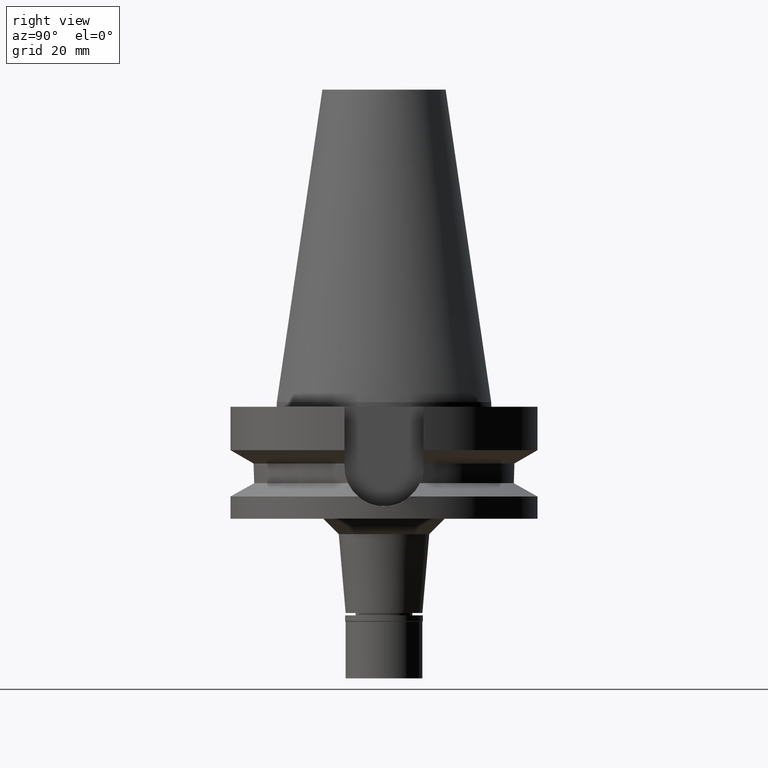
[diagram: clean part render]
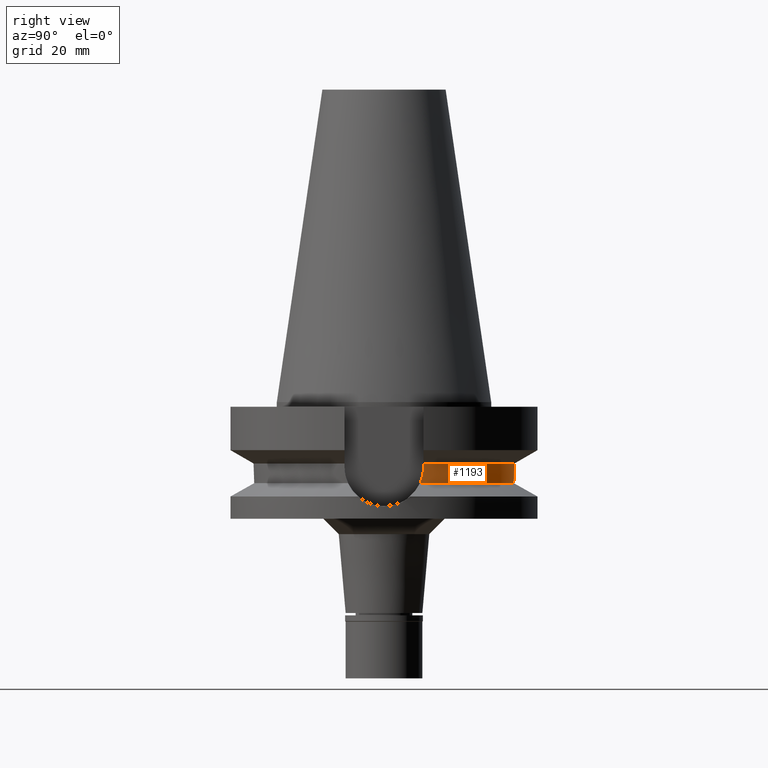
[diagram: same view with one face highlighted and labeled with its STEP entity id]
A machine part, right view. The second image highlights one B-rep face of the part: STEP entity #1193.
In plain terms, the highlighted cylindrical surface (partial cylindrical patch) has radius 42.5 mm, axis along (0, 0, -1).
Its self-contained STEP definition (entity closure, byte-faithful):
#2 = CARTESIAN_POINT ( 'NONE',  ( 40.63719938804641174, 12.44499676302016233, -24.35261212845198742 ) ) ;
#92 = ORIENTED_EDGE ( 'NONE', *, *, #3111, .F. ) ;
#164 = CARTESIAN_POINT ( 'NONE',  ( 40.51083188481999997, 12.84999999999999964, -21.14999999999999858 ) ) ;
#202 = CARTESIAN_POINT ( 'NONE',  ( 40.54025086427707691, 12.75862911299039659, -22.93149008167891267 ) ) ;
#246 = ORIENTED_EDGE ( 'NONE', *, *, #1407, .T. ) ;
#313 = ORIENTED_EDGE ( 'NONE', *, *, #975, .T. ) ;
#322 = CARTESIAN_POINT ( 'NONE',  ( -40.59736864107516396, 12.57412283048225099, -23.79851909554432510 ) ) ;
#411 = DIRECTION ( 'NONE',  ( 9.660770044642962035E-07, 3.045651069405985193E-06, -0.9999999999948953056 ) ) ;
#426 = DIRECTION ( 'NONE',  ( 9.626750504179301114E-07, -3.034926090456095832E-06, 0.9999999999949311658 ) ) ;
#444 = ORIENTED_EDGE ( 'NONE', *, *, #3133, .F. ) ;
#476 = AXIS2_PLACEMENT_3D ( 'NONE', #826, #2525, #2302 ) ;
#480 = CARTESIAN_POINT ( 'NONE',  ( 40.74530522851000569, 12.08734613715847139, -25.53455770061882646 ) ) ;
#530 = CARTESIAN_POINT ( 'NONE',  ( -40.59188398425018818, 12.59182459259148956, -23.71305796896682949 ) ) ;
#547 = CARTESIAN_POINT ( 'NONE',  ( -40.51083188481999997, 12.84999999999999964, -21.14999999999999858 ) ) ;
#558 = DIRECTION ( 'NONE',  ( 0.0000000000000000000, 0.0000000000000000000, -1.000000000000000000 ) ) ;
#606 = ORIENTED_EDGE ( 'NONE', *, *, #2189, .F. ) ;
#626 = FACE_OUTER_BOUND ( 'NONE', #2049, .T. ) ;
#674 = LINE ( 'NONE', #164, #2689 ) ;
#817 = B_SPLINE_CURVE_WITH_KNOTS ( 'NONE', 3,
 ( #547, #2263, #1530, #2522, #1515, #2506, #1252, #1012, #530, #1045, #322, #2022, #3020, #824 ),
 .UNSPECIFIED., .F., .F.,
 ( 4, 2, 2, 1, 1, 2, 2, 4 ),
 ( 0.0000000000000000000, 0.2499999999999877875, 0.3749999999999826250, 0.4374999999999801270, 0.4687499999999798495, 0.4843749999999797939, 0.4999999999999796829, 1.000000000000000000 ),
 .UNSPECIFIED. ) ;
#824 = CARTESIAN_POINT ( 'NONE',  ( -40.85052569294000335, 11.72538061688000077, -26.40718074535000426 ) ) ;
#826 = CARTESIAN_POINT ( 'NONE',  ( 0.0000000000000000000, 0.0000000000000000000, -26.40718074535000426 ) ) ;
#844 = VERTEX_POINT ( 'NONE', #2165 ) ;
#907 = CYLINDRICAL_SURFACE ( 'NONE', #2928, 42.50000000000000000 ) ;
#975 = EDGE_CURVE ( 'NONE', #2393, #844, #2276, .T. ) ;
#977 = CARTESIAN_POINT ( 'NONE',  ( 40.51083188481999997, 12.84999999999999964, -22.03308001790878023 ) ) ;
#1012 = CARTESIAN_POINT ( 'NONE',  ( -40.58662608485431633, 12.60878154790536598, -23.62927549513685221 ) ) ;
#1021 = ORIENTED_EDGE ( 'NONE', *, *, #2459, .F. ) ;
#1045 = CARTESIAN_POINT ( 'NONE',  ( -40.59544671389546977, 12.58032818125508001, -23.76890350620164227 ) ) ;
#1117 = DIRECTION ( 'NONE',  ( 0.0000000000000000000, 0.0000000000000000000, -1.000000000000000000 ) ) ;
#1131 = DIRECTION ( 'NONE',  ( 0.0000000000000000000, -1.000000000000000000, 0.0000000000000000000 ) ) ;
#1193 = ADVANCED_FACE ( 'NONE', ( #626 ), #907, .T. ) ;
#1245 = AXIS2_PLACEMENT_3D ( 'NONE', #2756, #558, #2791 ) ;
#1252 = CARTESIAN_POINT ( 'NONE',  ( -40.57496101843508995, 12.64633755876300647, -23.43369807928905146 ) ) ;
#1376 = VERTEX_POINT ( 'NONE', #1675 ) ;
#1407 = EDGE_CURVE ( 'NONE', #1486, #2602, #2216, .T. ) ;
#1448 = CARTESIAN_POINT ( 'NONE',  ( 40.60092750940732031, 12.56262654778542931, -23.85254111937017640 ) ) ;
#1477 = CARTESIAN_POINT ( 'NONE',  ( 40.85052569294000335, 11.72538061688000077, -26.40718074535000426 ) ) ;
#1486 = VERTEX_POINT ( 'NONE', #2850 ) ;
#1515 = CARTESIAN_POINT ( 'NONE',  ( -40.54944727710435615, 12.72806419699667480, -22.93049076237651462 ) ) ;
#1530 = CARTESIAN_POINT ( 'NONE',  ( -40.51818719763605969, 12.82722225432310204, -22.03686830847411215 ) ) ;
#1573 = B_SPLINE_CURVE_WITH_KNOTS ( 'NONE', 3,
 ( #1665, #1676, #480, #1948, #2412, #2, #2161, #1901, #2923, #2662, #1448, #202, #977, #1691 ),
 .UNSPECIFIED., .F., .F.,
 ( 4, 2, 2, 1, 1, 2, 2, 4 ),
 ( 0.0000000000000000000, 0.2500000000000199285, 0.3750000000000298650, 0.4375000000000346945, 0.4687500000000359157, 0.4843750000000358047, 0.5000000000000356382, 1.000000000000000000 ),
 .UNSPECIFIED. ) ;
#1665 = CARTESIAN_POINT ( 'NONE',  ( 40.85052569294000335, 11.72538061688000077, -26.40718074535000426 ) ) ;
#1675 = CARTESIAN_POINT ( 'NONE',  ( -40.51083188481999997, 12.84999999999999964, -21.14999999999999858 ) ) ;
#1676 = CARTESIAN_POINT ( 'NONE',  ( 40.79434743163939459, 11.92110232363585531, -25.97065181133539369 ) ) ;
#1691 = CARTESIAN_POINT ( 'NONE',  ( 40.51083188481999997, 12.84999999999999964, -21.14999999999999858 ) ) ;
#1870 = CARTESIAN_POINT ( 'NONE',  ( 40.51083299878000332, 12.84999648812000039, -19.99284620586999850 ) ) ;
#1880 = CARTESIAN_POINT ( 'NONE',  ( -40.51083300271999832, 12.84999647571000025, -19.99284630112000016 ) ) ;
#1901 = CARTESIAN_POINT ( 'NONE',  ( 40.61156896389181270, 12.52821669071923338, -24.00856318992673266 ) ) ;
#1908 = LINE ( 'NONE', #1880, #1971 ) ;
#1948 = CARTESIAN_POINT ( 'NONE',  ( 40.68244601107283387, 12.29666625012446346, -24.88710380514564235 ) ) ;
#1971 = VECTOR ( 'NONE', #411, 1000.000000000000227 ) ;
#2022 = CARTESIAN_POINT ( 'NONE',  ( -40.65435955981745053, 12.39001970624488891, -24.66361747048510011 ) ) ;
#2049 = EDGE_LOOP ( 'NONE', ( #92, #246, #444, #606, #313, #1021 ) ) ;
#2161 = CARTESIAN_POINT ( 'NONE',  ( 40.62482961095487610, 12.48525133054237379, -24.19329755004105564 ) ) ;
#2165 = CARTESIAN_POINT ( 'NONE',  ( -40.85052569294000335, 11.72538061688000077, -26.40718074535000426 ) ) ;
#2189 = EDGE_CURVE ( 'NONE', #2393, #2752, #1573, .T. ) ;
#2216 = CIRCLE ( 'NONE', #1245, 42.50000000000002132 ) ;
#2263 = CARTESIAN_POINT ( 'NONE',  ( -40.51083188482000708, 12.85000000000002451, -21.59154171183185866 ) ) ;
#2276 = CIRCLE ( 'NONE', #476, 42.50000000000000000 ) ;
#2302 = DIRECTION ( 'NONE',  ( 0.0000000000000000000, 1.000000000000000000, 0.0000000000000000000 ) ) ;
#2393 = VERTEX_POINT ( 'NONE', #1477 ) ;
#2397 = CARTESIAN_POINT ( 'NONE',  ( 40.51083188481999997, 12.84999999999999964, -21.14999999999999858 ) ) ;
#2412 = CARTESIAN_POINT ( 'NONE',  ( 40.66327695313657387, 12.35977177935063587, -24.67238797833628539 ) ) ;
#2459 = EDGE_CURVE ( 'NONE', #1376, #844, #817, .T. ) ;
#2506 = CARTESIAN_POINT ( 'NONE',  ( -40.56599673094051184, 12.67509433839780897, -23.26596311455570998 ) ) ;
#2522 = CARTESIAN_POINT ( 'NONE',  ( -40.54025313608427439, 12.75731810731626759, -22.70684014861360467 ) ) ;
#2525 = DIRECTION ( 'NONE',  ( 0.0000000000000000000, 0.0000000000000000000, 1.000000000000000000 ) ) ;
#2602 = VERTEX_POINT ( 'NONE', #1870 ) ;
#2662 = CARTESIAN_POINT ( 'NONE',  ( 40.60257095199544608, 12.55731571366465182, -23.87709474180955738 ) ) ;
#2689 = VECTOR ( 'NONE', #426, 1000.000000000000114 ) ;
#2752 = VERTEX_POINT ( 'NONE', #2397 ) ;
#2756 = CARTESIAN_POINT ( 'NONE',  ( 0.0000000000000000000, 1.006319759053999930E-14, -19.99281925464999787 ) ) ;
#2791 = DIRECTION ( 'NONE',  ( -0.9531960443486575674, 0.3023529411764863672, 0.0000000000000000000 ) ) ;
#2850 = CARTESIAN_POINT ( 'NONE',  ( -40.51083188481999997, 12.84999999999999964, -19.99281925464999787 ) ) ;
#2923 = CARTESIAN_POINT ( 'NONE',  ( 40.60613670648131546, 12.54578755583637495, -23.92964714798038628 ) ) ;
#2928 = AXIS2_PLACEMENT_3D ( 'NONE', #3084, #1117, #1131 ) ;
#3020 = CARTESIAN_POINT ( 'NONE',  ( -40.73816957792652715, 12.11682261037110386, -25.53412604446968004 ) ) ;
#3084 = CARTESIAN_POINT ( 'NONE',  ( 0.0000000000000000000, 2.584984463639999652E-14, 111.0799999999999983 ) ) ;
#3111 = EDGE_CURVE ( 'NONE', #1486, #1376, #1908, .T. ) ;
#3133 = EDGE_CURVE ( 'NONE', #2752, #2602, #674, .T. ) ;